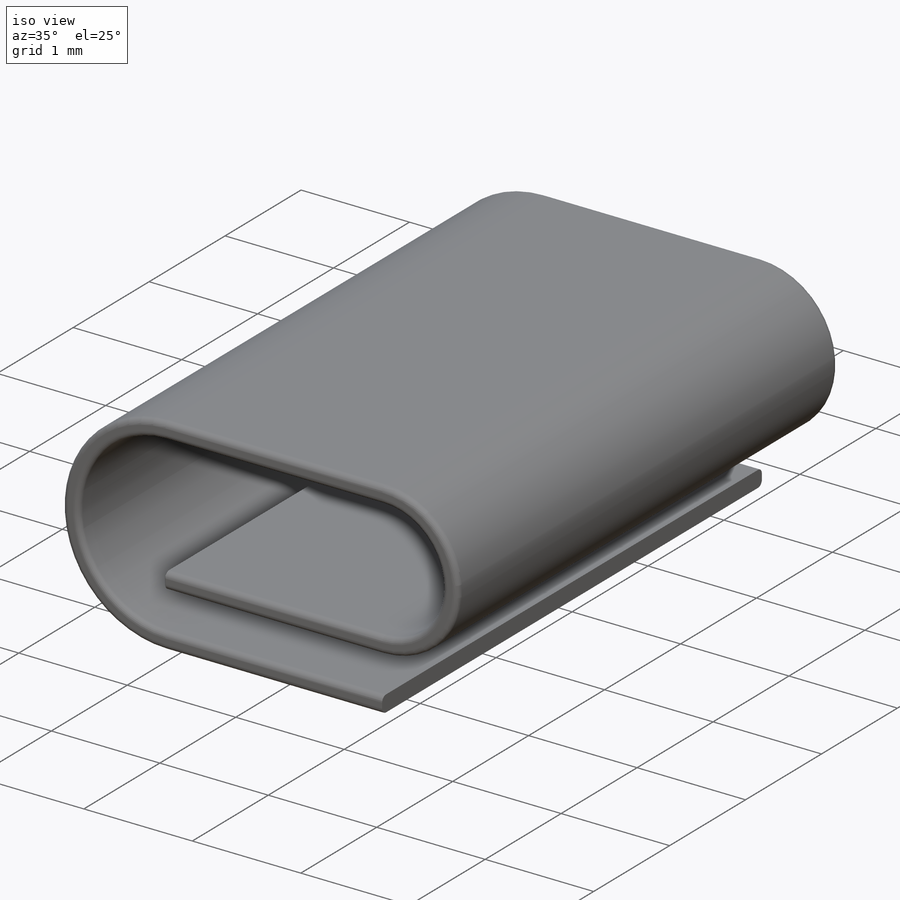
[diagram: iso view]
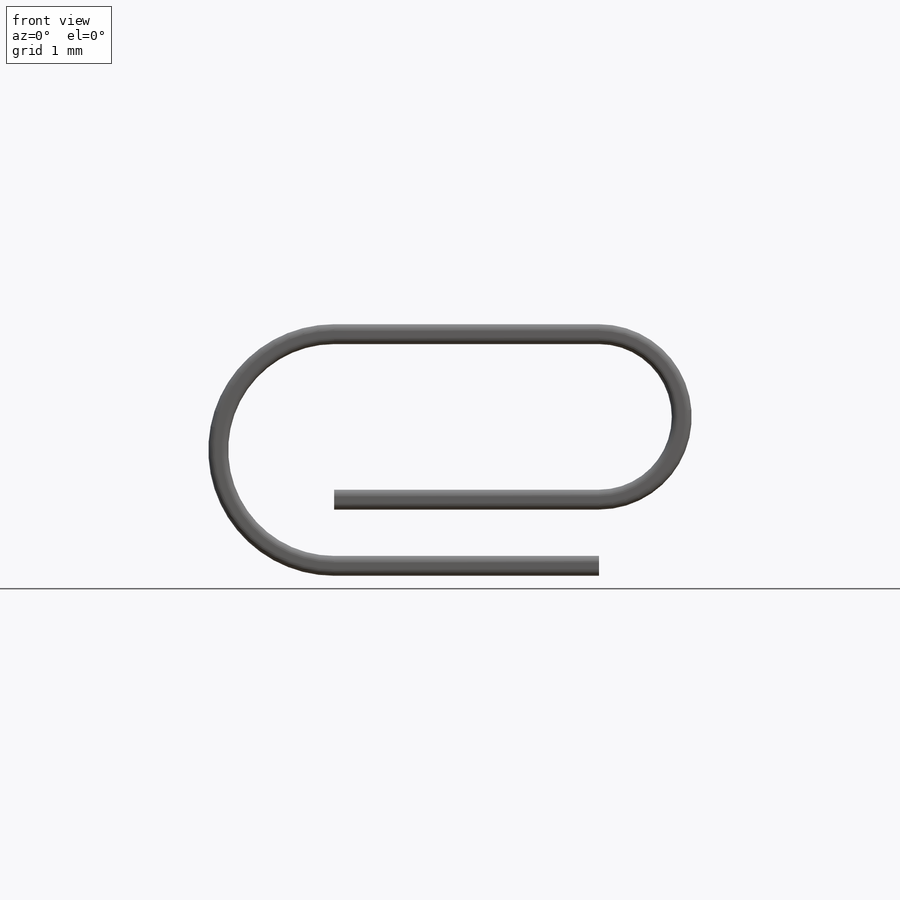
[diagram: front view]
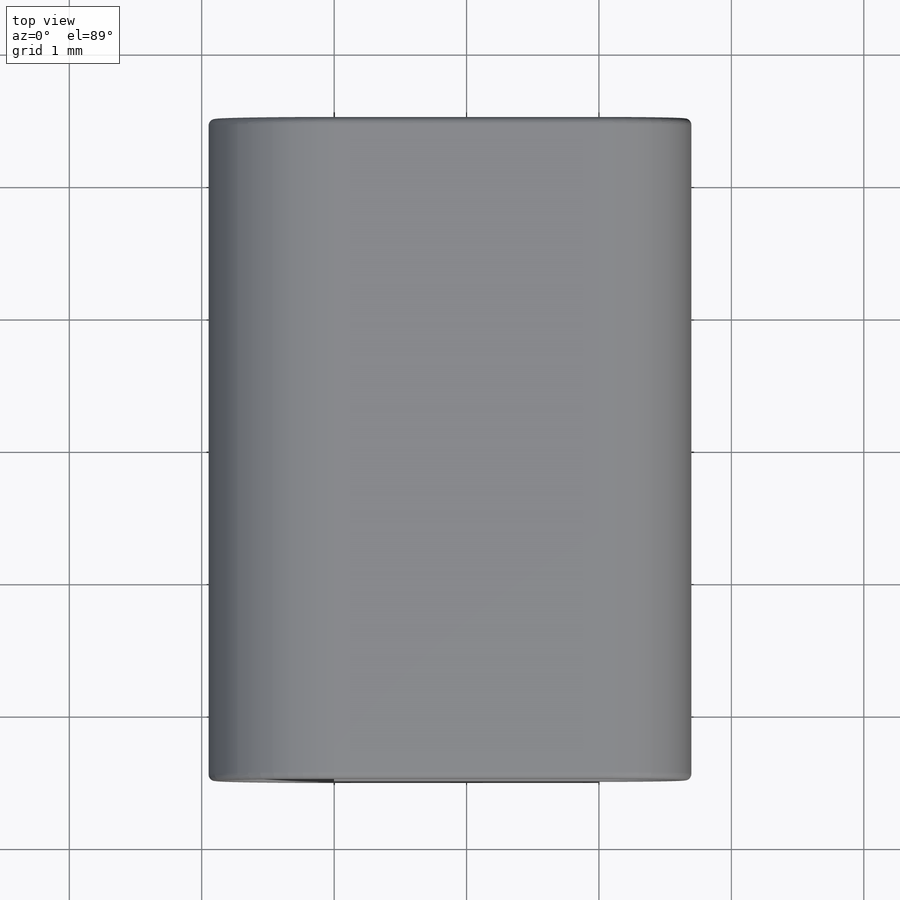
[diagram: top view]
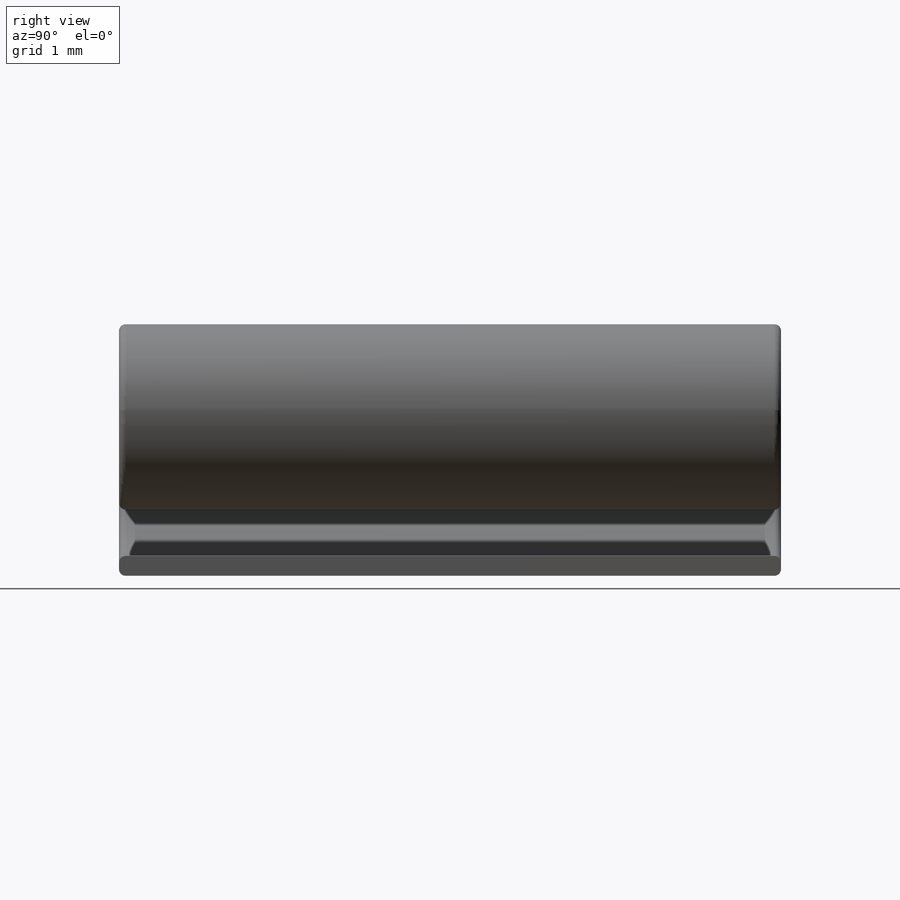
[diagram: right view]
SOLIDWORKS PART (.sldprt)
format: sldprt  version: not decoded by parser v0  size: 894,976 bytes
history: native  units: mm
features: sketch x14, sheet_metal_op x12, plane x4, extrude x3, fillet x2, mirror x2, material x1, cut_extrude x1 + 3 further entries (+12 scaffold rows collapsed; 5 parser-record rows omitted)
feature tree (59):
  scaffold x12  (default folders/planes/origin — collapsed)
  material  "AISI 316 Stainless Steel Sheet (SS)"
  sketch  "Sketch1"  dims[c1.D2=1.0mm c1.D3=0.55mm c1.D1=2.0mm c2.D2=2.6mm c2.D3=~3.542834mm c3.D3=~75.893675deg c4.D3=~1483.529864mm c4.D4=~1658.062789mm c4.D5=~1.313102mm c4.D6=1.176mm c5.D5=0.5mm c5.D6=3.2mm c5.D2=1.75mm c5.D3=2.0mm c6.D2=0.5mm c6.D3=0.5mm c6.D4=~1.247256mm c7.D2=3.0mm c7.D3=1.6mm c7.D1=0.2mm c8.D2=0.5 c8.D3=0.0deg c8.D6=~28.64789deg]
  sheet_metal_op  "Base-Flange1"
  sheet_metal_op  "BaseBend4"
  fillet  "Fillet2"  Radius=0.05mm
  sketch  "Sketch6"  dims[D2=0.1mm D1=5.0mm D3=0.2mm]
  cut_extrude  "Cut-Extrude1"  [1 undecoded]
  plane  "Plane1"
  sketch  "Sketch10"  dims[D1=2.0mm]
  sheet_metal_op  "Miterbend1"
  plane  "Plane2"
  sketch  "Sketch12"  dims[D1=~349.06585mm D2=1.4mm]
  extrude  "Miter Flange2"  [1 undecoded]
  sheet_metal_op  "Miterbend2"
  plane  "Plane6"
  sketch  "Sketch17"  dims[D1=~349.06585mm]
  extrude  "Miter Flange3"  [1 undecoded]
  sheet_metal_op  "Miterbend3"
  plane  "Plane8"
  sketch  "Sketch20"  dims[D1=~349.06585mm]
  extrude  "Miter Flange5"  [1 undecoded]
  sheet_metal_op  "Miterbend5"
  fillet  "Fillet1"  Radius=0.6mm
  mirror  "Mirror1"
  sheet_metal_op  "MirrorBend1"
  sheet_metal_op  "MirrorBend2"
  sheet_metal_op  "MirrorBend3"
  parser-record x5  (decoder bookkeeping rows leaked as tree rows — omitted from the tree; the rows remain in map.json)
  mirror  "Unfold2"
  sketch  "Bend-Lines1"
  sketch  "Bounding-Box1"
  sheet_metal_op  "Sheet-Metal(1)"
  "Flat-Pattern(1)"
  sketch  "Bend-Lines2"
  sketch  "Bounding-Box2"
  sheet_metal_op  "Sheet-Metal(2)"
  "Flat-Pattern(1)"
  sketch  "Bend-Lines3"
  sketch  "Bounding-Box3"
  sheet_metal_op  "Sheet-Metal(3)"
  "Flat-Pattern(1)"
  sketch  "Bend-Lines4"
  sketch  "Bounding-Box4"
decode coverage: 8 of 34 modeling features carry decoded parameters; 3 rows unclassified (native names shown)
note: ~ marks probable driven/reference dimensions
note: 4 parameter values undecoded
summary: no parameter record found for 4 features
note: suppression state not decoded; provenance and decode notes live in map.json
